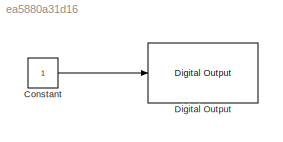
MODEL slx_ea5880a31d16
KIND model
BLOCK [Constant] Constant
  SampleTime = 0.5
BLOCK [Reference] Digital Output  REF=c2833xlib/Digital Output
  GPIO_BIT0_Toggle = off
  GPIO_BIT1_Toggle = off
  GPIO_BIT2_Toggle = on
  GPIO_BIT3_Toggle = off
  GPIO_BIT4_Toggle = off
  GPIO_BIT5_Toggle = off
  GPIO_BIT6_Toggle = off
  GPIO_BIT7_Toggle = off
  GPIO_Bit0 = off
  GPIO_Bit1 = off
  GPIO_Bit2 = on
  GPIO_Bit3 = off
  GPIO_Bit4 = off
  GPIO_Bit5 = off
  GPIO_Bit6 = off
  GPIO_Bit7 = off
  GPIO_Number = GPIO32~GPIO39
  Ports = [1]
  SourceBlock = c2833xlib/Digital Output
  SourceType = C2833x GPIO Digital Output
  UserDataPersistent = on
LINE Constant:1 -> Digital Output:1
